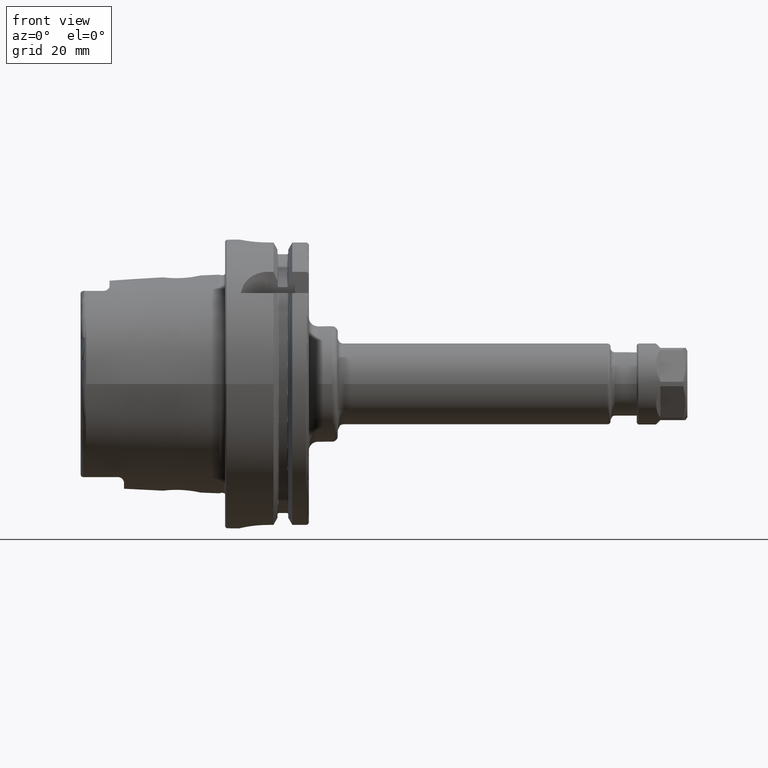
[diagram: clean part render]
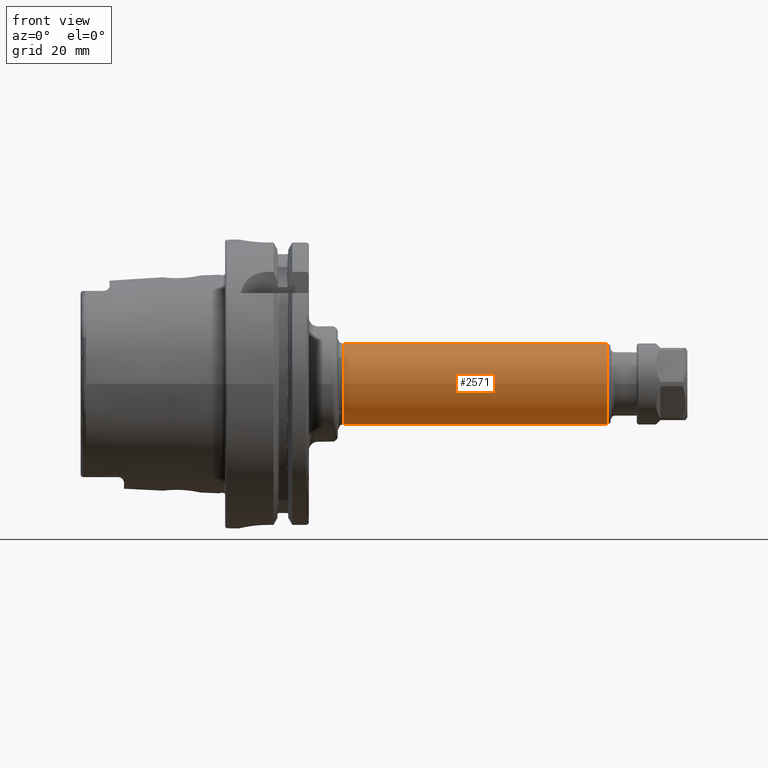
[diagram: same view with one face highlighted and labeled with its STEP entity id]
A machine part, front view. The second image highlights one B-rep face of the part: STEP entity #2571.
In plain terms, the highlighted cylindrical surface (bore or boss wall) has radius 14 mm, axis along (1, 0, 0).
Its self-contained STEP definition (entity closure, byte-faithful):
#286=FACE_OUTER_BOUND('',#441,.T.);
#441=EDGE_LOOP('',(#1735,#1736,#1737,#1738,#1739,#1740));
#610=LINE('',#3981,#752);
#752=VECTOR('',#3163,14.);
#897=CIRCLE('',#2803,14.);
#898=CIRCLE('',#2804,14.);
#900=CIRCLE('',#2808,14.);
#901=CIRCLE('',#2809,14.);
#1065=VERTEX_POINT('',#3971);
#1066=VERTEX_POINT('',#3973);
#1068=VERTEX_POINT('',#3980);
#1069=VERTEX_POINT('',#3982);
#1328=EDGE_CURVE('',#1065,#1066,#897,.T.);
#1329=EDGE_CURVE('',#1066,#1065,#898,.T.);
#1331=EDGE_CURVE('',#1066,#1068,#610,.T.);
#1332=EDGE_CURVE('',#1069,#1068,#900,.T.);
#1333=EDGE_CURVE('',#1068,#1069,#901,.T.);
#1735=ORIENTED_EDGE('',*,*,#1329,.F.);
#1736=ORIENTED_EDGE('',*,*,#1331,.T.);
#1737=ORIENTED_EDGE('',*,*,#1332,.F.);
#1738=ORIENTED_EDGE('',*,*,#1333,.F.);
#1739=ORIENTED_EDGE('',*,*,#1331,.F.);
#1740=ORIENTED_EDGE('',*,*,#1328,.F.);
#2525=CYLINDRICAL_SURFACE('',#2807,14.);
#2571=ADVANCED_FACE('',(#286),#2525,.T.);
#2803=AXIS2_PLACEMENT_3D('',#3974,#3153,#3154);
#2804=AXIS2_PLACEMENT_3D('',#3975,#3155,#3156);
#2807=AXIS2_PLACEMENT_3D('',#3979,#3161,#3162);
#2808=AXIS2_PLACEMENT_3D('',#3983,#3164,#3165);
#2809=AXIS2_PLACEMENT_3D('',#3984,#3166,#3167);
#3153=DIRECTION('center_axis',(1.,0.,0.));
#3154=DIRECTION('ref_axis',(0.,-1.,1.83697019872103E-16));
#3155=DIRECTION('center_axis',(1.,0.,0.));
#3156=DIRECTION('ref_axis',(0.,-1.,1.83697019872103E-16));
#3161=DIRECTION('center_axis',(1.,0.,0.));
#3162=DIRECTION('ref_axis',(0.,1.,0.));
#3163=DIRECTION('',(-1.,0.,0.));
#3164=DIRECTION('center_axis',(-1.,0.,0.));
#3165=DIRECTION('ref_axis',(0.,-1.,1.83697019872103E-16));
#3166=DIRECTION('center_axis',(-1.,0.,0.));
#3167=DIRECTION('ref_axis',(0.,-1.,1.83697019872103E-16));
#3971=CARTESIAN_POINT('',(132.4,-1.71450551880629E-15,14.));
#3973=CARTESIAN_POINT('',(132.4,-14.,-1.71450551880629E-15));
#3974=CARTESIAN_POINT('Origin',(132.4,0.,0.));
#3975=CARTESIAN_POINT('Origin',(132.4,0.,0.));
#3979=CARTESIAN_POINT('Origin',(86.2,0.,0.));
#3980=CARTESIAN_POINT('',(41.,-14.,-1.71450551880629E-15));
#3981=CARTESIAN_POINT('',(86.2,-14.,-1.71450551880629E-15));
#3982=CARTESIAN_POINT('',(41.,-1.71450551880629E-15,14.));
#3983=CARTESIAN_POINT('Origin',(41.,0.,0.));
#3984=CARTESIAN_POINT('Origin',(41.,0.,0.));